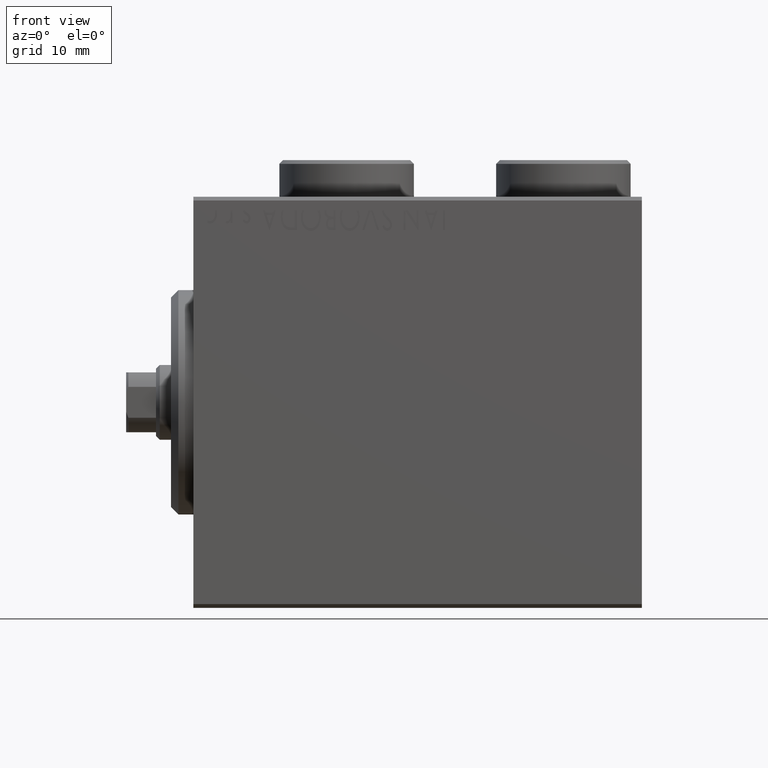
[diagram: clean part render]
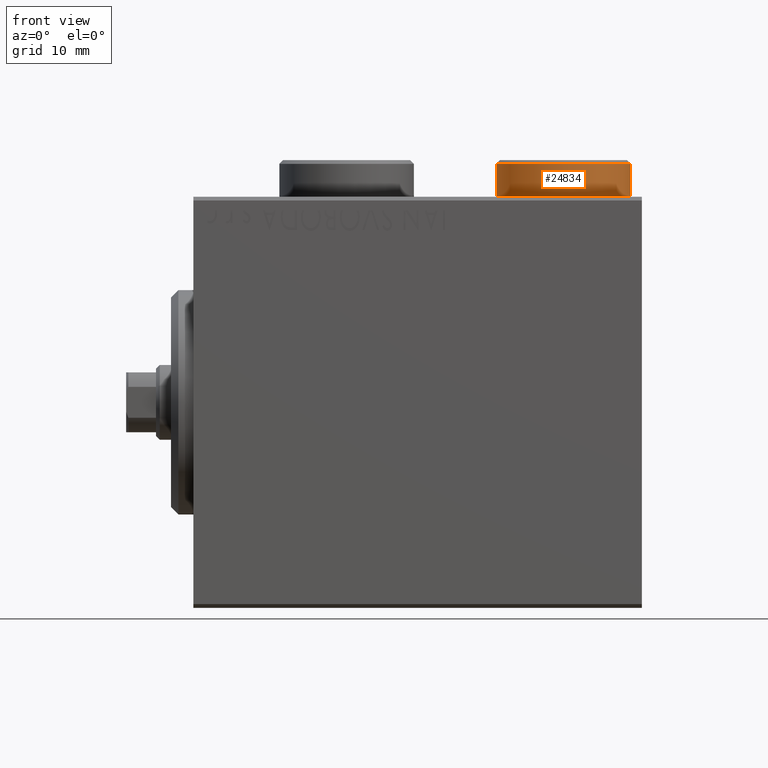
[diagram: same view with one face highlighted and labeled with its STEP entity id]
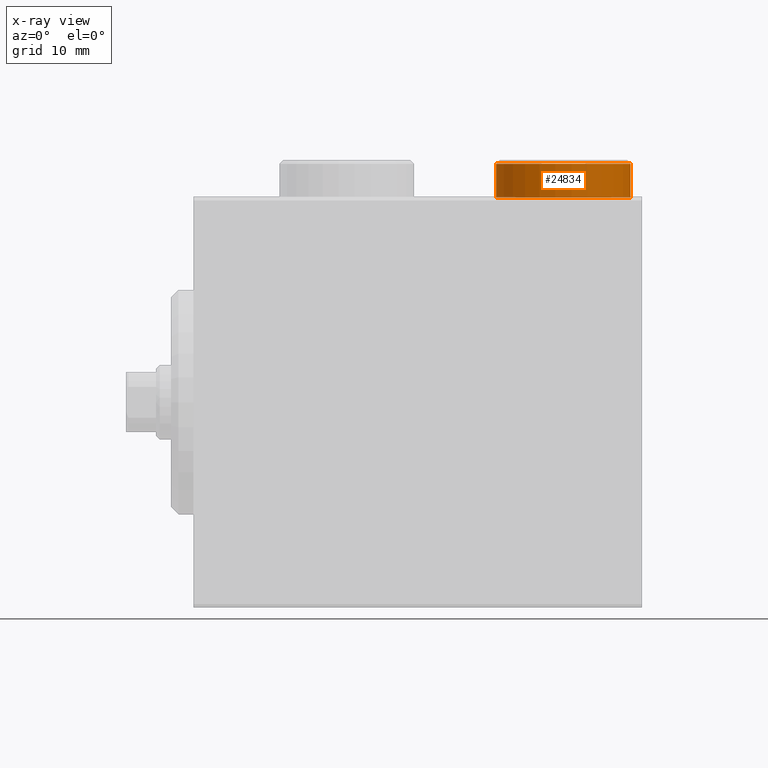
[diagram: x-ray of the same camera — body ghosted, the highlighted face saturated]
A machine part, front view. The second image highlights one B-rep face of the part: STEP entity #24834.
The next image is the same camera in x-ray: the body ghosted, the highlighted face saturated — about 1% of this face is hidden behind the body in this view.
In plain terms, the highlighted cylindrical surface (partial cylindrical patch) has radius 9 mm, axis along (-0, -0, -1).
Its self-contained STEP definition (entity closure, byte-faithful):
#1543 = DIRECTION ( 'NONE',  ( 0.000000000000000000, 0.000000000000000000, -1.000000000000000000 ) ) ;
#1733 = ORIENTED_EDGE ( 'NONE', *, *, #28005, .F. ) ;
#2279 = VERTEX_POINT ( 'NONE', #43356 ) ;
#5060 = ORIENTED_EDGE ( 'NONE', *, *, #11815, .T. ) ;
#7785 = CARTESIAN_POINT ( 'NONE',  ( 9.000000000000001776, 1.102182119232617911E-15, 5.000000000000000000 ) ) ;
#9003 = ORIENTED_EDGE ( 'NONE', *, *, #9648, .T. ) ;
#9648 = EDGE_CURVE ( 'NONE', #12991, #12888, #12738, .T. ) ;
#10013 = DIRECTION ( 'NONE',  ( -1.000000000000000000, 0.000000000000000000, 0.000000000000000000 ) ) ;
#11815 = EDGE_CURVE ( 'NONE', #43327, #12991, #18346, .T. ) ;
#12738 = CIRCLE ( 'NONE', #31084, 9.000000000000001776 ) ;
#12888 = VERTEX_POINT ( 'NONE', #20860 ) ;
#12991 = VERTEX_POINT ( 'NONE', #18767 ) ;
#16920 = FACE_OUTER_BOUND ( 'NONE', #34920, .T. ) ;
#18346 = LINE ( 'NONE', #24562, #20879 ) ;
#18767 = CARTESIAN_POINT ( 'NONE',  ( -9.000000000000001776, 0.000000000000000000, 0.000000000000000000 ) ) ;
#20830 = CYLINDRICAL_SURFACE ( 'NONE', #29969, 9.000000000000001776 ) ;
#20860 = CARTESIAN_POINT ( 'NONE',  ( 9.000000000000001776, 1.102182119232617911E-15, 0.000000000000000000 ) ) ;
#20879 = VECTOR ( 'NONE', #32381, 1000.000000000000000 ) ;
#23660 = ORIENTED_EDGE ( 'NONE', *, *, #36928, .T. ) ;
#24562 = CARTESIAN_POINT ( 'NONE',  ( -9.000000000000001776, 0.000000000000000000, 5.000000000000000000 ) ) ;
#24834 = ADVANCED_FACE ( 'NONE', ( #16920 ), #20830, .T. ) ;
#24901 = VECTOR ( 'NONE', #45534, 1000.000000000000000 ) ;
#25704 = DIRECTION ( 'NONE',  ( 1.000000000000000000, 0.000000000000000000, 0.000000000000000000 ) ) ;
#26469 = CIRCLE ( 'NONE', #39713, 9.000000000000001776 ) ;
#28005 = EDGE_CURVE ( 'NONE', #2279, #12888, #38621, .T. ) ;
#29969 = AXIS2_PLACEMENT_3D ( 'NONE', #41760, #30720, #10013 ) ;
#30720 = DIRECTION ( 'NONE',  ( -0.000000000000000000, -0.000000000000000000, -1.000000000000000000 ) ) ;
#31084 = AXIS2_PLACEMENT_3D ( 'NONE', #42373, #39361, #43039 ) ;
#32381 = DIRECTION ( 'NONE',  ( -0.000000000000000000, -0.000000000000000000, -1.000000000000000000 ) ) ;
#34920 = EDGE_LOOP ( 'NONE', ( #1733, #23660, #5060, #9003 ) ) ;
#36063 = CARTESIAN_POINT ( 'NONE',  ( 0.000000000000000000, 0.000000000000000000, 4.500000000000006217 ) ) ;
#36149 = CARTESIAN_POINT ( 'NONE',  ( -9.000000000000001776, 0.000000000000000000, 4.500000000000006217 ) ) ;
#36928 = EDGE_CURVE ( 'NONE', #2279, #43327, #26469, .T. ) ;
#38621 = LINE ( 'NONE', #7785, #24901 ) ;
#39361 = DIRECTION ( 'NONE',  ( 0.000000000000000000, 0.000000000000000000, 1.000000000000000000 ) ) ;
#39713 = AXIS2_PLACEMENT_3D ( 'NONE', #36063, #1543, #25704 ) ;
#41760 = CARTESIAN_POINT ( 'NONE',  ( 0.000000000000000000, 0.000000000000000000, 5.000000000000000000 ) ) ;
#42373 = CARTESIAN_POINT ( 'NONE',  ( 0.000000000000000000, 0.000000000000000000, 0.000000000000000000 ) ) ;
#43039 = DIRECTION ( 'NONE',  ( 1.000000000000000000, 0.000000000000000000, 0.000000000000000000 ) ) ;
#43327 = VERTEX_POINT ( 'NONE', #36149 ) ;
#43356 = CARTESIAN_POINT ( 'NONE',  ( 9.000000000000001776, 1.102182119232617911E-15, 4.500000000000006217 ) ) ;
#45534 = DIRECTION ( 'NONE',  ( -0.000000000000000000, -0.000000000000000000, -1.000000000000000000 ) ) ;